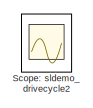
[diagram: root canvas - part 1/3, top left region]
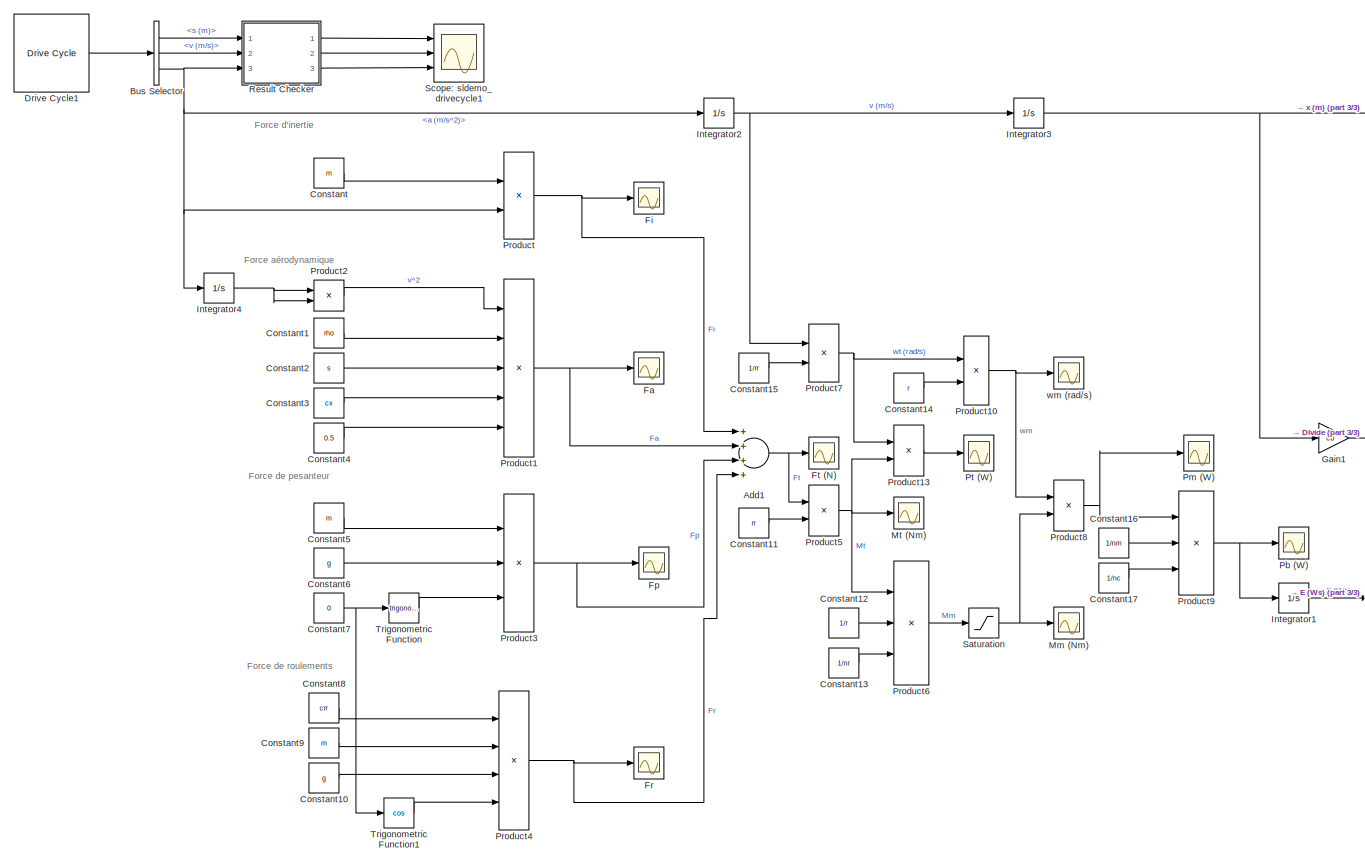
[diagram: root canvas - part 2/3, most of the canvas]
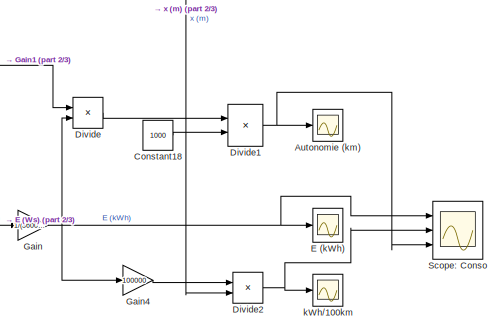
[diagram: root canvas - part 3/3, bottom right region]
MODEL slx_3dc6d92cbdb4
KIND model
CONFIG AbsTol = auto
CONFIG EnableMultiTasking = off
CONFIG FixedStep = auto
CONFIG MaxStep = auto
CONFIG MinStep = auto
CONFIG RelTol = 1e-3
CONFIG SampleTimeConstraint = Unconstrained
CONFIG Solver = VariableStepAuto
CONFIG SolverName = VariableStepAuto
CONFIG StartTime = 0.0
CONFIG StopTime = 1180
BLOCK [Sum] Add1
  InputSameDT = off
  Inputs = ++++
  OutDataTypeStr = Inherit: Inherit via internal rule
  Ports = [4, 1]
  SaturateOnIntegerOverflow = off
BLOCK [Scope] Autonomie (km)
  Floating = off
  NumInputPorts = 1
  Ports = [1]
  ScopeSpecificationString = Simulink.scopes.TimeScopeBlockCfg('CurrentConfiguration', extmgr.ConfigurationSet(extmgr.Configuration('Core','General UI',true),extmgr.Configuration('Core','Source UI',true),extmgr.Configuration('Sources','WiredSimulink',true,'DataLoggingVariableName','ScopeData3'),extmgr.Configuration('Visuals','Time Domain',true,'SerializedDisplays',{struct('MinYLimReal','13.33408','MaxYLimReal','927.72189','YL...<+1449ch>
BLOCK [BusSelector] Bus Selector
  OutputAsBus = off
  OutputSignals = s (m),v (m/s),a (m/s^2)
  Ports = [1, 3]
BLOCK [Constant] Constant
  Value = m
BLOCK [Constant] Constant1
  Value = rho
BLOCK [Constant] Constant10
  Value = g
BLOCK [Constant] Constant11
  Value = rr
BLOCK [Constant] Constant12
  Value = 1/r
BLOCK [Constant] Constant13
  Value = 1/nr
BLOCK [Constant] Constant14
  Value = r
BLOCK [Constant] Constant15
  Value = 1/rr
BLOCK [Constant] Constant16
  Value = 1/nm
BLOCK [Constant] Constant17
  Value = 1/nc
BLOCK [Constant] Constant18
  Value = 1000
BLOCK [Constant] Constant2
  Value = s
BLOCK [Constant] Constant3
  Value = cx
BLOCK [Constant] Constant4
  Value = 0.5
BLOCK [Constant] Constant5
  Value = m
BLOCK [Constant] Constant6
  Value = g
BLOCK [Constant] Constant7
  Value = 0
BLOCK [Constant] Constant8
  Value = crr
BLOCK [Constant] Constant9
  Value = m
BLOCK [Product] Divide
  InputSameDT = off
  Inputs = */
  OutDataTypeStr = Inherit: Inherit via internal rule
  Ports = [2, 1]
  RndMeth = Floor
  SaturateOnIntegerOverflow = off
BLOCK [Product] Divide1
  InputSameDT = off
  Inputs = */
  OutDataTypeStr = Inherit: Inherit via internal rule
  Ports = [2, 1]
  RndMeth = Floor
  SaturateOnIntegerOverflow = off
BLOCK [Product] Divide2
  InputSameDT = off
  Inputs = */
  OutDataTypeStr = Inherit: Inherit via internal rule
  Ports = [2, 1]
  RndMeth = Floor
  SaturateOnIntegerOverflow = off
BLOCK [Reference] Drive Cycle1  REF=drivecyclelib/Drive Cycle  (lib defined in slx_81b896a7d342, slx_ea48a560381a)
  Ports = [0, 1]
  SourceBlock = drivecyclelib/Drive Cycle
  SourceProductName = Drive Cycles Blockset
  SourceType = Drive Cycle
BLOCK [Scope] E (kWh)
  Floating = off
  NumInputPorts = 1
  Ports = [1]
  ScopeSpecificationString = Simulink.scopes.TimeScopeBlockCfg('CurrentConfiguration', extmgr.ConfigurationSet(extmgr.Configuration('Core','General UI',true),extmgr.Configuration('Core','Source UI',true),extmgr.Configuration('Sources','WiredSimulink',true,'DataLoggingVariableName','ScopeData1'),extmgr.Configuration('Visuals','Time Domain',true,'SerializedDisplays',{struct('MinYLimReal','-0.28653','MaxYLimReal','2.57878','YLab...<+2348ch>
BLOCK [Scope] Fa
  Floating = off
  NumInputPorts = 1
  Ports = [1]
  ScopeSpecificationString = Simulink.scopes.TimeScopeBlockCfg('CurrentConfiguration', extmgr.ConfigurationSet(extmgr.Configuration('Core','General UI',true),extmgr.Configuration('Core','Source UI',true),extmgr.Configuration('Sources','WiredSimulink',true,'DataLoggingVariableName','ScopeData5'),extmgr.Configuration('Visuals','Time Domain',true,'SerializedDisplays',{struct('MinYLimReal','-50.9226','MaxYLimReal','458.30339','YL...<+1426ch>
BLOCK [Scope] Fi
  Floating = off
  NumInputPorts = 1
  Ports = [1]
  ScopeSpecificationString = Simulink.scopes.TimeScopeBlockCfg('CurrentConfiguration', extmgr.ConfigurationSet(extmgr.Configuration('Core','General UI',true),extmgr.Configuration('Core','Source UI',true),extmgr.Configuration('Sources','WiredSimulink',true,'DataLoggingVariableName','ScopeData8'),extmgr.Configuration('Visuals','Time Domain',true,'SerializedDisplays',{struct('MinYLimReal','-4384.375','MaxYLimReal','4959.375','YL...<+1425ch>
BLOCK [Scope] Fp
  Floating = off
  NumInputPorts = 1
  Ports = [1]
  ScopeSpecificationString = Simulink.scopes.TimeScopeBlockCfg('CurrentConfiguration', extmgr.ConfigurationSet(extmgr.Configuration('Core','General UI',true),extmgr.Configuration('Core','Source UI',true),extmgr.Configuration('Sources','WiredSimulink',true,'DataLoggingVariableName','ScopeData6'),extmgr.Configuration('Visuals','Time Domain',true,'SerializedDisplays',{struct('MinYLimReal','319.35227','MaxYLimReal','519.35227','Y...<+1448ch>
BLOCK [Scope] Fr
  Floating = off
  NumInputPorts = 1
  Ports = [1]
  ScopeSpecificationString = Simulink.scopes.TimeScopeBlockCfg('CurrentConfiguration', extmgr.ConfigurationSet(extmgr.Configuration('Core','General UI',true),extmgr.Configuration('Core','Source UI',true),extmgr.Configuration('Sources','WiredSimulink',true,'DataLoggingVariableName','ScopeData7'),extmgr.Configuration('Visuals','Time Domain',true,'SerializedDisplays',{struct('MinYLimReal','238.44445','MaxYLimReal','438.44445','Y...<+1429ch>
BLOCK [Scope] Ft (N)
  Floating = off
  NumInputPorts = 1
  Ports = [1]
  ScopeSpecificationString = Simulink.scopes.TimeScopeBlockCfg('CurrentConfiguration', extmgr.ConfigurationSet(extmgr.Configuration('Core','General UI',true),extmgr.Configuration('Core','Source UI',true),extmgr.Configuration('Sources','WiredSimulink',true,'DataLoggingVariableName','ScopeData10'),extmgr.Configuration('Visuals','Time Domain',true,'SerializedDisplays',{struct('MinYLimReal','-3192.79154','MaxYLimReal','4090.69119...<+1457ch>
BLOCK [Gain] Gain
  Gain = 1/(3600*1000)
  OutDataTypeStr = Inherit: Inherit via internal rule
  ParamDataTypeStr = Inherit: Inherit via internal rule
  SaturateOnIntegerOverflow = off
BLOCK [Gain] Gain1
  Gain = cb
  OutDataTypeStr = Inherit: Inherit via internal rule
  ParamDataTypeStr = Inherit: Inherit via internal rule
  SaturateOnIntegerOverflow = off
BLOCK [Gain] Gain4
  Gain = 100000
  OutDataTypeStr = Inherit: Inherit via internal rule
  ParamDataTypeStr = Inherit: Inherit via internal rule
  SaturateOnIntegerOverflow = off
BLOCK [Integrator] Integrator1
  Ports = [1, 1]
BLOCK [Integrator] Integrator2
  Ports = [1, 1]
BLOCK [Integrator] Integrator3
  Ports = [1, 1]
BLOCK [Integrator] Integrator4
  Ports = [1, 1]
BLOCK [Scope] Mm (Nm)
  Floating = off
  NumInputPorts = 1
  Ports = [1]
  ScopeSpecificationString = Simulink.scopes.TimeScopeBlockCfg('CurrentConfiguration', extmgr.ConfigurationSet(extmgr.Configuration('Core','General UI',true),extmgr.Configuration('Core','Source UI',true),extmgr.Configuration('Sources','WiredSimulink',true,'DataLoggingVariableName','ScopeData1'),extmgr.Configuration('Visuals','Time Domain',true,'SerializedDisplays',{struct('MinYLimReal','-131.01602','MaxYLimReal','126.6644','Y...<+1435ch>
BLOCK [Scope] Mt (Nm)
  Floating = off
  NumInputPorts = 1
  Ports = [1]
  ScopeSpecificationString = Simulink.scopes.TimeScopeBlockCfg('CurrentConfiguration', extmgr.ConfigurationSet(extmgr.Configuration('Core','General UI',true),extmgr.Configuration('Core','Source UI',true),extmgr.Configuration('Sources','WiredSimulink',true),extmgr.Configuration('Visuals','Time Domain',true,'SerializedDisplays',{struct('MinYLimReal','-1213.86468','MaxYLimReal','1598.51993','YLabelReal','','MinYLimMag','  0.0000...<+1388ch>
BLOCK [Scope] Pb (W)
  Floating = off
  NumInputPorts = 1
  Ports = [1]
  ScopeSpecificationString = Simulink.scopes.TimeScopeBlockCfg('CurrentConfiguration', extmgr.ConfigurationSet(extmgr.Configuration('Core','General UI',true),extmgr.Configuration('Core','Source UI',true),extmgr.Configuration('Sources','WiredSimulink',true,'DataLoggingVariableName','ScopeData9'),extmgr.Configuration('Visuals','Time Domain',true,'SerializedDisplays',{struct('MinYLimReal','-83443.1401','MaxYLimReal','100799.2758...<+1453ch>
BLOCK [Scope] Pm (W)
  Floating = off
  NumInputPorts = 1
  Ports = [1]
  ScopeSpecificationString = Simulink.scopes.TimeScopeBlockCfg('CurrentConfiguration', extmgr.ConfigurationSet(extmgr.Configuration('Core','General UI',true),extmgr.Configuration('Core','Source UI',true),extmgr.Configuration('Sources','WiredSimulink',true,'DataLoggingVariableName','ScopeData12'),extmgr.Configuration('Visuals','Time Domain',true,'SerializedDisplays',{struct('MinYLimReal','-66095.31128','MaxYLimReal','79843.106...<+1452ch>
BLOCK [Product] Product
  InputSameDT = off
  OutDataTypeStr = Inherit: Inherit via internal rule
  Ports = [2, 1]
  RndMeth = Floor
  SaturateOnIntegerOverflow = off
BLOCK [Product] Product1
  InputSameDT = off
  Inputs = 5
  OutDataTypeStr = Inherit: Inherit via internal rule
  Ports = [5, 1]
  RndMeth = Floor
  SaturateOnIntegerOverflow = off
BLOCK [Product] Product10
  InputSameDT = off
  OutDataTypeStr = Inherit: Inherit via internal rule
  Ports = [2, 1]
  RndMeth = Floor
  SaturateOnIntegerOverflow = off
BLOCK [Product] Product13
  InputSameDT = off
  OutDataTypeStr = Inherit: Inherit via internal rule
  Ports = [2, 1]
  RndMeth = Floor
  SaturateOnIntegerOverflow = off
BLOCK [Product] Product2
  InputSameDT = off
  OutDataTypeStr = Inherit: Inherit via internal rule
  Ports = [2, 1]
  RndMeth = Floor
  SaturateOnIntegerOverflow = off
BLOCK [Product] Product3
  InputSameDT = off
  Inputs = 3
  OutDataTypeStr = Inherit: Inherit via internal rule
  Ports = [3, 1]
  RndMeth = Floor
  SaturateOnIntegerOverflow = off
BLOCK [Product] Product4
  InputSameDT = off
  Inputs = 4
  OutDataTypeStr = Inherit: Inherit via internal rule
  Ports = [4, 1]
  RndMeth = Floor
  SaturateOnIntegerOverflow = off
BLOCK [Product] Product5
  InputSameDT = off
  OutDataTypeStr = Inherit: Inherit via internal rule
  Ports = [2, 1]
  RndMeth = Floor
  SaturateOnIntegerOverflow = off
BLOCK [Product] Product6
  InputSameDT = off
  Inputs = 3
  OutDataTypeStr = Inherit: Inherit via internal rule
  Ports = [3, 1]
  RndMeth = Floor
  SaturateOnIntegerOverflow = off
BLOCK [Product] Product7
  InputSameDT = off
  OutDataTypeStr = Inherit: Inherit via internal rule
  Ports = [2, 1]
  RndMeth = Floor
  SaturateOnIntegerOverflow = off
BLOCK [Product] Product8
  InputSameDT = off
  OutDataTypeStr = Inherit: Inherit via internal rule
  Ports = [2, 1]
  RndMeth = Floor
  SaturateOnIntegerOverflow = off
BLOCK [Product] Product9
  InputSameDT = off
  Inputs = 3
  OutDataTypeStr = Inherit: Inherit via internal rule
  Ports = [3, 1]
  RndMeth = Floor
  SaturateOnIntegerOverflow = off
BLOCK [Scope] Pt (W)
  Floating = off
  NumInputPorts = 1
  Ports = [1]
  ScopeSpecificationString = Simulink.scopes.TimeScopeBlockCfg('CurrentConfiguration', extmgr.ConfigurationSet(extmgr.Configuration('Core','General UI',true),extmgr.Configuration('Core','Source UI',true),extmgr.Configuration('Sources','WiredSimulink',true,'DataLoggingVariableName','ScopeData1'),extmgr.Configuration('Visuals','Time Domain',true,'SerializedDisplays',{struct('MinYLimReal','-53026.35127','MaxYLimReal','66671.3533...<+1459ch>
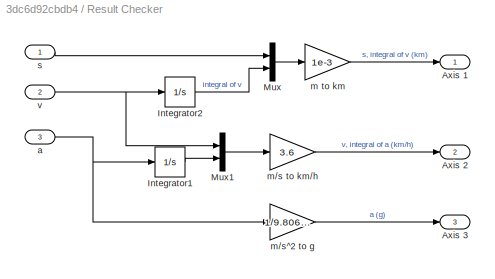
BLOCK [SubSystem] Result Checker
  Ports = [3, 3]
  RequestExecContextInheritance = off
BLOCK [Outport] Result Checker/Axis 1
  IconDisplay = Port number
BLOCK [Outport] Result Checker/Axis 2
  IconDisplay = Port number
  Port = 2
BLOCK [Outport] Result Checker/Axis 3
  IconDisplay = Port number
  Port = 3
BLOCK [Integrator] Result Checker/Integrator1
  Ports = [1, 1]
BLOCK [Integrator] Result Checker/Integrator2
  Ports = [1, 1]
BLOCK [Mux] Result Checker/Mux
  DisplayOption = bar
  Inputs = 2
  Ports = [2, 1]
BLOCK [Mux] Result Checker/Mux1
  DisplayOption = bar
  Inputs = 2
  Ports = [2, 1]
BLOCK [Inport] Result Checker/a
  IconDisplay = Port number
  Port = 3
BLOCK [Gain] Result Checker/m to km
  Gain = 1e-3
  OutDataTypeStr = Inherit: Inherit via internal rule
  ParamDataTypeStr = Inherit: Inherit via internal rule
  SaturateOnIntegerOverflow = off
BLOCK [Gain] Result Checker/m//s to km//h
  Gain = 3.6
  OutDataTypeStr = Inherit: Inherit via internal rule
  ParamDataTypeStr = Inherit: Inherit via internal rule
  SaturateOnIntegerOverflow = off
BLOCK [Gain] Result Checker/m//s^2 to g
  Gain = 1/9.80665
  OutDataTypeStr = Inherit: Inherit via internal rule
  ParamDataTypeStr = Inherit: Inherit via internal rule
  SaturateOnIntegerOverflow = off
BLOCK [Inport] Result Checker/s
  IconDisplay = Port number
BLOCK [Inport] Result Checker/v
  IconDisplay = Port number
  Port = 2
BLOCK [Saturate] Saturation
  InputPortMap = u0
  LowerLimit = -mlimit
  Ports = [1, 1]
  UpperLimit = mlimit
BLOCK [Scope] Scope: Conso
  Floating = off
  NumInputPorts = 3
  Ports = [3]
  ScopeSpecificationString = Simulink.scopes.TimeScopeBlockCfg('CurrentConfiguration', extmgr.ConfigurationSet(extmgr.Configuration('Core','General UI',true,'FigureColor',[0.8 0.8 0.8]),extmgr.Configuration('Core','Source UI',true),extmgr.Configuration('Sources','WiredSimulink',true,'DataLoggingVariableName','ScopeData3','DataLoggingSaveFormat','StructureWithTime','DataLoggingDecimation','1','DataLoggingDecimateData',true),ex...<+5477ch>
BLOCK [Scope] Scope: sldemo_drivecycle1
  Floating = off
  NumInputPorts = 3
  Ports = [3]
  ScopeSpecificationString = Simulink.scopes.TimeScopeBlockCfg('CurrentConfiguration', extmgr.ConfigurationSet(extmgr.Configuration('Core','General UI',true,'FigureColor',[0.8 0.8 0.8]),extmgr.Configuration('Core','Source UI',true),extmgr.Configuration('Sources','WiredSimulink',true,'DataLoggingVariableName','ScopeData1','DataLoggingSaveFormat','StructureWithTime','DataLoggingDecimation','1','DataLoggingDecimateData',true),ex...<+5531ch>
BLOCK [Scope] Scope: sldemo_drivecycle2
  Floating = off
  NumInputPorts = 3
  Ports = [3]
  ScopeSpecificationString = Simulink.scopes.TimeScopeBlockCfg('CurrentConfiguration', extmgr.ConfigurationSet(extmgr.Configuration('Core','General UI',true,'FigureColor',[0 0 0]),extmgr.Configuration('Core','Source UI',true),extmgr.Configuration('Sources','WiredSimulink',true,'DataLoggingVariableName','ScopeData2','DataLoggingSaveFormat','StructureWithTime','DataLoggingDecimation','1','DataLoggingDecimateData',true),extmgr.C...<+5073ch>
BLOCK [Trigonometry] Trigonometric Function
  Ports = [1, 1]
BLOCK [Trigonometry] Trigonometric Function1
  Operator = cos
  Ports = [1, 1]
BLOCK [Scope] kWh//100km 
  Floating = off
  NumInputPorts = 1
  Ports = [1]
  ScopeSpecificationString = Simulink.scopes.TimeScopeBlockCfg('CurrentConfiguration', extmgr.ConfigurationSet(extmgr.Configuration('Core','General UI',true),extmgr.Configuration('Core','Source UI',true),extmgr.Configuration('Sources','WiredSimulink',true,'DataLoggingVariableName','ScopeData1'),extmgr.Configuration('Visuals','Time Domain',true,'SerializedDisplays',{struct('MinYLimReal','11.15292','MaxYLimReal','21.80341','YLa...<+1452ch>
BLOCK [Scope] wm (rad//s)
  Floating = off
  NumInputPorts = 1
  Ports = [1]
  ScopeSpecificationString = Simulink.scopes.TimeScopeBlockCfg('CurrentConfiguration', extmgr.ConfigurationSet(extmgr.Configuration('Core','General UI',true),extmgr.Configuration('Core','Source UI',true),extmgr.Configuration('Sources','WiredSimulink',true,'DataLoggingVariableName','ScopeData11'),extmgr.Configuration('Visuals','Time Domain',true,'SerializedDisplays',{struct('MinYLimReal','-1.00000','MaxYLimReal','1.00000','YLa...<+1393ch>
ANNOTATION (root): Force aérodynamique
ANNOTATION (root): Force d'inertie
ANNOTATION (root): Force de pesanteur
ANNOTATION (root): Force de roulements
NET Add1:1 -> Ft (N):1, Product5:1
LINE Bus Selector:1 -> Result Checker:1
LINE Bus Selector:2 -> Result Checker:2
NET Bus Selector:3 -> Integrator2:1, Integrator4:1, Product:2, Result Checker:3
LINE Constant10:1 -> Product4:3
LINE Constant11:1 -> Product5:2
LINE Constant12:1 -> Product6:2
LINE Constant13:1 -> Product6:3
LINE Constant14:1 -> Product10:2
LINE Constant15:1 -> Product7:2
LINE Constant16:1 -> Product9:2
LINE Constant17:1 -> Product9:3
LINE Constant18:1 -> Divide1:2
LINE Constant1:1 -> Product1:2
LINE Constant2:1 -> Product1:3
LINE Constant3:1 -> Product1:4
LINE Constant4:1 -> Product1:5
LINE Constant5:1 -> Product3:1
LINE Constant6:1 -> Product3:2
NET Constant7:1 -> Trigonometric Function1:1, Trigonometric Function:1
LINE Constant8:1 -> Product4:1
LINE Constant9:1 -> Product4:2
LINE Constant:1 -> Product:1
NET Divide1:1 -> Autonomie (km):1, Scope: Conso:3
NET Divide2:1 -> Scope: Conso:2, kWh//100km :1
LINE Divide:1 -> Divide1:1
LINE Drive Cycle1:1 -> Bus Selector:1
LINE Gain1:1 -> Divide:1
LINE Gain4:1 -> Divide2:1
NET Gain:1 -> Divide:2, E (kWh):1, Gain4:1, Scope: Conso:1
LINE Integrator1:1 -> Gain:1
NET Integrator2:1 -> Integrator3:1, Product7:1
NET Integrator3:1 -> Divide2:2, Gain1:1
NET Integrator4:1 -> Product2:1, Product2:2
NET Product10:1 -> Product8:1, wm (rad//s):1
LINE Product13:1 -> Pt (W):1
NET Product1:1 -> Add1:2, Fa:1
LINE Product2:1 -> Product1:1
NET Product3:1 -> Add1:3, Fp:1
NET Product4:1 -> Add1:4, Fr:1
NET Product5:1 -> Mt (Nm):1, Product13:2, Product6:1
LINE Product6:1 -> Saturation:1
NET Product7:1 -> Product10:1, Product13:1
NET Product8:1 -> Pm (W):1, Product9:1
NET Product9:1 -> Integrator1:1, Pb (W):1
NET Product:1 -> Add1:1, Fi:1
LINE Result Checker/Integrator1:1 -> Result Checker/Mux1:2
LINE Result Checker/Integrator2:1 -> Result Checker/Mux:2
LINE Result Checker/Mux1:1 -> Result Checker/m//s to km//h:1
LINE Result Checker/Mux:1 -> Result Checker/m to km:1
NET Result Checker/a:1 -> Result Checker/Integrator1:1, Result Checker/m//s^2 to g:1
LINE Result Checker/m to km:1 -> Result Checker/Axis 1:1
LINE Result Checker/m//s to km//h:1 -> Result Checker/Axis 2:1
LINE Result Checker/m//s^2 to g:1 -> Result Checker/Axis 3:1
LINE Result Checker/s:1 -> Result Checker/Mux:1
NET Result Checker/v:1 -> Result Checker/Integrator2:1, Result Checker/Mux1:1
LINE Result Checker:1 -> Scope: sldemo_drivecycle1:1
LINE Result Checker:2 -> Scope: sldemo_drivecycle1:2
LINE Result Checker:3 -> Scope: sldemo_drivecycle1:3
NET Saturation:1 -> Mm (Nm):1, Product8:2
LINE Trigonometric Function1:1 -> Product4:4
LINE Trigonometric Function:1 -> Product3:3
note: NET lines group one-source signal fan-out (src -> all destinations, sorted); 1:1 wires keep LINE
